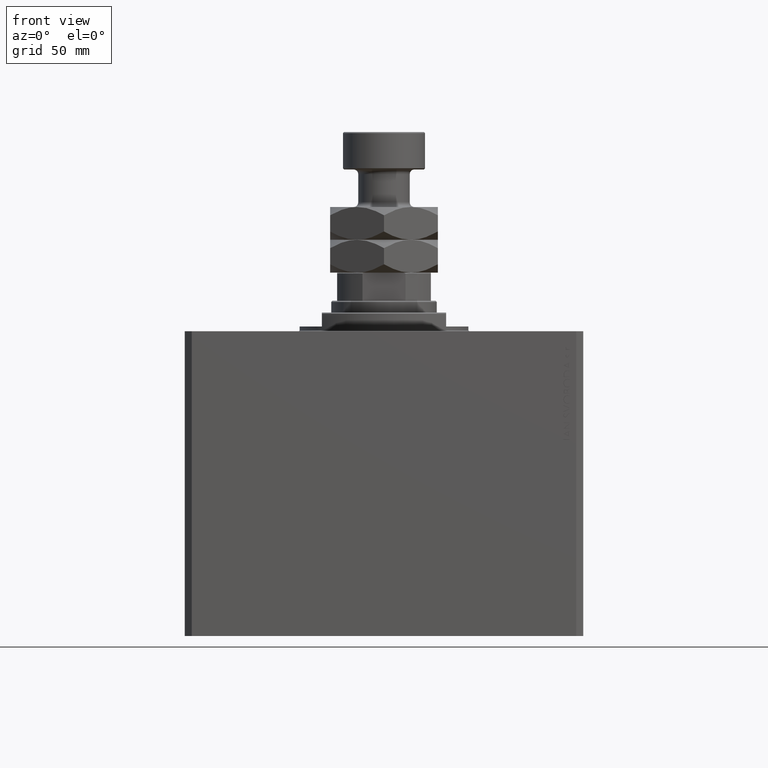
[diagram: clean part render]
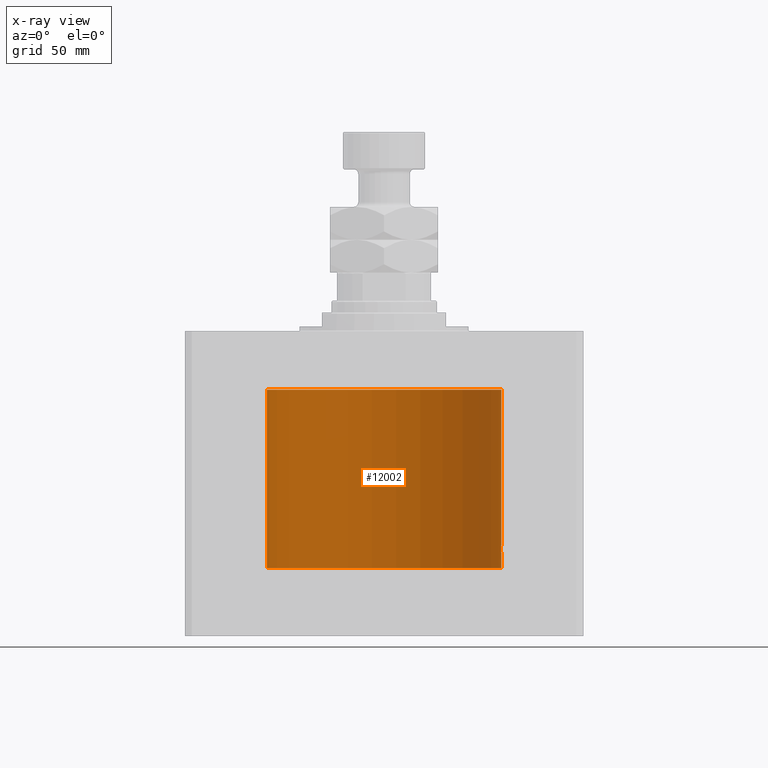
[diagram: x-ray — body ghosted, one internal face saturated and labeled with its STEP entity id]
A machine part, front view, then the same camera in x-ray: the body is ghosted and one INTERNAL B-rep face — a face not visible from any outside direction — is saturated and labeled: STEP entity #12002.
In plain terms, the highlighted cylindrical surface (partial cylindrical patch) has radius 50 mm, axis along (0, 0, 1).
Its self-contained STEP definition (entity closure, byte-faithful):
#119 = CARTESIAN_POINT ( 'NONE',  ( -49.99007938266582585, 1.001891274688316180, -35.26411427938287346 ) ) ;
#2446 = DIRECTION ( 'NONE',  ( 1.000000000000000000, 0.000000000000000000, 0.000000000000000000 ) ) ;
#3112 = ORIENTED_EDGE ( 'NONE', *, *, #20492, .T. ) ;
#3844 = CARTESIAN_POINT ( 'NONE',  ( -49.99598898362840771, 0.6447919409892279852, -35.10225615370830354 ) ) ;
#4339 = B_SPLINE_CURVE_WITH_KNOTS ( 'NONE', 3,
 ( #33304, #11286, #22938, #41480, #3844, #18965, #119, #15251, #45417, #11540, #26651, #37998, #41733, #17994, #48401, #33065, #6818, #30589, #8300, #23413, #38974, #31312, #8542, #16229, #4817, #16477, #34279, #12014, #30827, #26898 ),
 .UNSPECIFIED., .F., .F.,
 ( 4, 2, 2, 2, 2, 2, 2, 2, 2, 2, 2, 2, 2, 2, 4 ),
 ( 1.326213792119351937E-18, 0.0003908460679639691742, 0.0007816921359279370473, 0.001172538203891904975, 0.001563384271855872793, 0.002345076407783809082, 0.003126768543711746021, 0.003517614611675713623, 0.003908460679639682092, 0.004299306747603650128, 0.004690152815567617296, 0.005080998883531585332, 0.005471844951495553368, 0.005862691019459521403, 0.006253537087423489439 ),
 .UNSPECIFIED. ) ;
#4817 = CARTESIAN_POINT ( 'NONE',  ( -49.99228773711749341, 0.8864865707480861223, -38.79759541170199100 ) ) ;
#5551 = ORIENTED_EDGE ( 'NONE', *, *, #29951, .T. ) ;
#5850 = CARTESIAN_POINT ( 'NONE',  ( 49.98263500888551647, 1.320952538904951679, -91.49251590435537196 ) ) ;
#6231 = ORIENTED_EDGE ( 'NONE', *, *, #26085, .T. ) ;
#6571 = CARTESIAN_POINT ( 'NONE',  ( 50.00000000000000711, 0.1321888607815029926, -95.00000000000005684 ) ) ;
#6730 = DIRECTION ( 'NONE',  ( 1.000000000000000000, 0.000000000000000000, 0.000000000000000000 ) ) ;
#6775 = DIRECTION ( 'NONE',  ( 0.000000000000000000, 0.000000000000000000, 1.000000000000000000 ) ) ;
#6818 = CARTESIAN_POINT ( 'NONE',  ( -49.96398106625520086, 1.898185627324846525, -37.64347622409935212 ) ) ;
#6819 = CARTESIAN_POINT ( 'NONE',  ( 49.99748146545036320, 0.5178754880116730464, -94.93618132556299827 ) ) ;
#7159 = EDGE_CURVE ( 'NONE', #27391, #21826, #20528, .T. ) ;
#8300 = CARTESIAN_POINT ( 'NONE',  ( -49.96992887184637055, 1.735355026673580214, -38.00276062309308855 ) ) ;
#8542 = CARTESIAN_POINT ( 'NONE',  ( -49.98523123236354593, 1.219998263164737029, -38.59015112589698759 ) ) ;
#10301 = CARTESIAN_POINT ( 'NONE',  ( 49.96952841668770162, 1.748193601366643479, -94.00584708661953925 ) ) ;
#10317 = CARTESIAN_POINT ( 'NONE',  ( 49.98523696312182096, 1.219762141829697999, -91.40967013674320185 ) ) ;
#10527 = CARTESIAN_POINT ( 'NONE',  ( 50.00000000000000000, 0.000000000000000000, -24.99999999999999289 ) ) ;
#11286 = CARTESIAN_POINT ( 'NONE',  ( -50.00000000000000711, 0.1321588334531834663, -34.99999999999998579 ) ) ;
#11540 = CARTESIAN_POINT ( 'NONE',  ( -49.97476780406313424, 1.598950834465297177, -35.77059039179120958 ) ) ;
#11866 = VERTEX_POINT ( 'NONE', #48374 ) ;
#12002 = ADVANCED_FACE ( 'NONE', ( #17660 ), #47558, .F. ) ;
#12014 = CARTESIAN_POINT ( 'NONE',  ( -49.99947195246410558, 0.2631107820817847887, -38.98691922436691470 ) ) ;
#12793 = ORIENTED_EDGE ( 'NONE', *, *, #27766, .T. ) ;
#12982 = LINE ( 'NONE', #20430, #19538 ) ;
#13305 = CARTESIAN_POINT ( 'NONE',  ( 49.96051123778289593, 1.986950357331387584, -92.73708610268798225 ) ) ;
#13310 = EDGE_LOOP ( 'NONE', ( #20949, #17781, #3112, #6231, #38227, #12793, #32897, #42661, #5551 ) ) ;
#13543 = CARTESIAN_POINT ( 'NONE',  ( 49.99947219664576181, 0.2630509640965523199, -91.01307477770997423 ) ) ;
#13773 = CARTESIAN_POINT ( 'NONE',  ( 50.00000000000000000, 1.506791491575916802E-16, -95.00000000000001421 ) ) ;
#14055 = VERTEX_POINT ( 'NONE', #38104 ) ;
#14267 = CARTESIAN_POINT ( 'NONE',  ( 49.96215500645249818, 1.947567242801464760, -93.52430054767012280 ) ) ;
#14402 = CIRCLE ( 'NONE', #25474, 50.00000000000000000 ) ;
#15251 = CARTESIAN_POINT ( 'NONE',  ( -49.98524905102831184, 1.219303128102697809, -35.40928153240807319 ) ) ;
#15623 = EDGE_CURVE ( 'NONE', #44744, #38151, #27052, .T. ) ;
#16229 = CARTESIAN_POINT ( 'NONE',  ( -49.99004874905787688, 1.003375892571688910, -38.73499659467171341 ) ) ;
#16477 = CARTESIAN_POINT ( 'NONE',  ( -49.99599814809604226, 0.6440968921210817877, -38.89798495722402549 ) ) ;
#17031 = CARTESIAN_POINT ( 'NONE',  ( 49.96251892914508375, 1.935809163618958495, -92.48063661859163176 ) ) ;
#17451 = DIRECTION ( 'NONE',  ( 1.000000000000000000, 0.000000000000000000, 0.000000000000000000 ) ) ;
#17660 = FACE_OUTER_BOUND ( 'NONE', #13310, .T. ) ;
#17761 = CARTESIAN_POINT ( 'NONE',  ( 49.95998398718717226, 2.000000000000564437, -92.86956549692723684 ) ) ;
#17781 = ORIENTED_EDGE ( 'NONE', *, *, #45883, .F. ) ;
#17994 = CARTESIAN_POINT ( 'NONE',  ( -49.95998213453558634, 2.000046279225707213, -37.12975027192857880 ) ) ;
#18556 = DIRECTION ( 'NONE',  ( -0.000000000000000000, -0.000000000000000000, 1.000000000000000000 ) ) ;
#18965 = CARTESIAN_POINT ( 'NONE',  ( -49.99227820941651146, 0.8870121366447424327, -35.20266925059756602 ) ) ;
#19538 = VECTOR ( 'NONE', #35727, 1000.000000000000000 ) ;
#20430 = CARTESIAN_POINT ( 'NONE',  ( -50.00000000000000000, 6.123233995736764507E-15, -101.0999999999999943 ) ) ;
#20492 = EDGE_CURVE ( 'NONE', #25638, #14055, #46861, .T. ) ;
#20528 = LINE ( 'NONE', #31401, #25443 ) ;
#20949 = ORIENTED_EDGE ( 'NONE', *, *, #7159, .F. ) ;
#21005 = CARTESIAN_POINT ( 'NONE',  ( 49.99229103891970283, 0.8862970221311301522, -91.20231340018571586 ) ) ;
#21720 = CARTESIAN_POINT ( 'NONE',  ( 49.99227494580978259, 0.8871990329080466919, -94.79724057694060946 ) ) ;
#21793 = DIRECTION ( 'NONE',  ( 0.000000000000000000, 0.000000000000000000, 1.000000000000000000 ) ) ;
#21826 = VERTEX_POINT ( 'NONE', #29024 ) ;
#22938 = CARTESIAN_POINT ( 'NONE',  ( -49.99947640732126075, 0.2621063239499299979, -35.01297064418641014 ) ) ;
#22939 = CIRCLE ( 'NONE', #45022, 50.00000000000000000 ) ;
#23413 = CARTESIAN_POINT ( 'NONE',  ( -49.97474787754178749, 1.590541763713787082, -38.21949285922860184 ) ) ;
#24700 = CARTESIAN_POINT ( 'NONE',  ( 49.97475596784978791, 1.590287868744626465, -91.78017932967551928 ) ) ;
#25176 = CARTESIAN_POINT ( 'NONE',  ( 49.97475955401471026, 1.599209500590070165, -94.22908514075388098 ) ) ;
#25298 = CARTESIAN_POINT ( 'NONE',  ( 49.95998398718716516, 2.000000000000563549, -93.00000000000001421 ) ) ;
#25340 = DIRECTION ( 'NONE',  ( -0.000000000000000000, -0.000000000000000000, 1.000000000000000000 ) ) ;
#25425 = CARTESIAN_POINT ( 'NONE',  ( 49.95998398718716516, 2.000000000000563549, -93.00000000000001421 ) ) ;
#25443 = VECTOR ( 'NONE', #38814, 1000.000000000000000 ) ;
#25474 = AXIS2_PLACEMENT_3D ( 'NONE', #37329, #21793, #2446 ) ;
#25638 = VERTEX_POINT ( 'NONE', #28517 ) ;
#25919 = CARTESIAN_POINT ( 'NONE',  ( 49.99947616946592177, 0.2621653831979099958, -94.98702351732302418 ) ) ;
#25997 = CARTESIAN_POINT ( 'NONE',  ( 50.00000000000000000, 0.000000000000000000, -101.0999999999999943 ) ) ;
#26085 = EDGE_CURVE ( 'NONE', #14055, #44744, #48151, .T. ) ;
#26651 = CARTESIAN_POINT ( 'NONE',  ( -49.96953708402610062, 1.747948211813102892, -35.99374183287712725 ) ) ;
#26898 = CARTESIAN_POINT ( 'NONE',  ( -50.00000000000000000, 6.123233989258158337E-15, -38.99999999999999289 ) ) ;
#27052 = B_SPLINE_CURVE_WITH_KNOTS ( 'NONE', 3,
 ( #29154, #17761, #13305, #17031, #44226, #28415, #43497, #24700, #39778, #5850, #10317, #40512, #21005, #32344, #47417, #13543, #28650, #40021 ),
 .UNSPECIFIED., .F., .F.,
 ( 4, 2, 2, 2, 2, 2, 2, 2, 4 ),
 ( 0.003127478965430518024, 0.003518236230679781373, 0.003908993495929044722, 0.004299750761178308504, 0.004690508026427571420, 0.005081265291676835202, 0.005472022556926098985, 0.005862779822175361900, 0.006253537087424624816 ),
 .UNSPECIFIED. ) ;
#27391 = VERTEX_POINT ( 'NONE', #39168 ) ;
#27766 = EDGE_CURVE ( 'NONE', #38151, #38645, #45018, .T. ) ;
#28415 = CARTESIAN_POINT ( 'NONE',  ( 49.96769480970100119, 1.797773714148179325, -92.11390000902667907 ) ) ;
#28517 = CARTESIAN_POINT ( 'NONE',  ( 50.00000000000000000, 0.000000000000000000, -101.0999999999999943 ) ) ;
#28650 = CARTESIAN_POINT ( 'NONE',  ( 50.00000000000000000, 0.1305077942112363443, -91.00000000000000000 ) ) ;
#28883 = CARTESIAN_POINT ( 'NONE',  ( 49.99598718814007015, 0.6449352407546058430, -94.89769711772643745 ) ) ;
#29024 = CARTESIAN_POINT ( 'NONE',  ( -50.00000000000000000, 6.123233989258158337E-15, -38.99999999999999289 ) ) ;
#29132 = EDGE_CURVE ( 'NONE', #43019, #11866, #12982, .T. ) ;
#29154 = CARTESIAN_POINT ( 'NONE',  ( 49.95998398718716516, 2.000000000000563549, -93.00000000000001421 ) ) ;
#29854 = CARTESIAN_POINT ( 'NONE',  ( 49.98524326844813004, 1.219541607305973274, -94.59053820226215237 ) ) ;
#29951 = EDGE_CURVE ( 'NONE', #43019, #21826, #4339, .T. ) ;
#30589 = CARTESIAN_POINT ( 'NONE',  ( -49.96768660357033554, 1.798001154690309411, -37.88564223843271606 ) ) ;
#30827 = CARTESIAN_POINT ( 'NONE',  ( -50.00000000000001421, 0.1305374531515847147, -38.99999999999999289 ) ) ;
#31312 = CARTESIAN_POINT ( 'NONE',  ( -49.98262832829516356, 1.321205413082630509, -38.50726475708437135 ) ) ;
#31401 = CARTESIAN_POINT ( 'NONE',  ( -50.00000000000000000, 6.123233995736764507E-15, -101.0999999999999943 ) ) ;
#32282 = CARTESIAN_POINT ( 'NONE',  ( 0.000000000000000000, 0.000000000000000000, -24.99999999999999289 ) ) ;
#32344 = CARTESIAN_POINT ( 'NONE',  ( 49.99599990398859006, 0.6439560014968565005, -91.10196939152021400 ) ) ;
#32728 = CARTESIAN_POINT ( 'NONE',  ( 0.000000000000000000, 0.000000000000000000, -101.0999999999999943 ) ) ;
#32897 = ORIENTED_EDGE ( 'NONE', *, *, #40652, .T. ) ;
#33065 = CARTESIAN_POINT ( 'NONE',  ( -49.96251288907240706, 1.935964606501246799, -37.51879205273049678 ) ) ;
#33304 = CARTESIAN_POINT ( 'NONE',  ( -50.00000000000000000, -7.484292582869336695E-15, -34.99999999999999289 ) ) ;
#33553 = CARTESIAN_POINT ( 'NONE',  ( 49.98259270595343651, 1.322475809934057889, -94.50601728397791135 ) ) ;
#33714 = VECTOR ( 'NONE', #43851, 1000.000000000000000 ) ;
#34279 = CARTESIAN_POINT ( 'NONE',  ( -49.99746633848589283, 0.5194059499681273895, -38.93579253716512767 ) ) ;
#35727 = DIRECTION ( 'NONE',  ( -0.000000000000000000, -0.000000000000000000, 1.000000000000000000 ) ) ;
#36821 = VECTOR ( 'NONE', #18556, 1000.000000000000000 ) ;
#37329 = CARTESIAN_POINT ( 'NONE',  ( 0.000000000000000000, 0.000000000000000000, -101.0999999999999943 ) ) ;
#37998 = CARTESIAN_POINT ( 'NONE',  ( -49.96216141728076821, 1.947404903100933504, -36.47512611661414184 ) ) ;
#38104 = CARTESIAN_POINT ( 'NONE',  ( 50.00000000000000000, 1.506791491575916802E-16, -95.00000000000001421 ) ) ;
#38151 = VERTEX_POINT ( 'NONE', #39799 ) ;
#38227 = ORIENTED_EDGE ( 'NONE', *, *, #15623, .T. ) ;
#38458 = CARTESIAN_POINT ( 'NONE',  ( -50.00000000000000000, -7.484292582869336695E-15, -34.99999999999999289 ) ) ;
#38645 = VERTEX_POINT ( 'NONE', #10527 ) ;
#38814 = DIRECTION ( 'NONE',  ( -0.000000000000000000, -0.000000000000000000, 1.000000000000000000 ) ) ;
#38974 = CARTESIAN_POINT ( 'NONE',  ( -49.97734518528593384, 1.507874855161124295, -38.32050907330479106 ) ) ;
#39168 = CARTESIAN_POINT ( 'NONE',  ( -50.00000000000000000, 6.123233995736764507E-15, -101.0999999999999943 ) ) ;
#39778 = CARTESIAN_POINT ( 'NONE',  ( 49.97735290927441554, 1.507618726120014241, -91.67920111852205878 ) ) ;
#39799 = CARTESIAN_POINT ( 'NONE',  ( 50.00000000000000000, -6.476745247090812175E-24, -91.00000000000001421 ) ) ;
#40021 = CARTESIAN_POINT ( 'NONE',  ( 50.00000000000000000, -6.476745247090812175E-24, -91.00000000000001421 ) ) ;
#40512 = CARTESIAN_POINT ( 'NONE',  ( 49.99005286890575661, 1.003169031662883182, -91.26488598342368164 ) ) ;
#40652 = EDGE_CURVE ( 'NONE', #38645, #11866, #22939, .T. ) ;
#40740 = CARTESIAN_POINT ( 'NONE',  ( 49.99007528730422933, 1.002097354324908984, -94.73576910828040809 ) ) ;
#41480 = CARTESIAN_POINT ( 'NONE',  ( -49.99748258676788026, 0.5177602892975216031, -35.06378986968200451 ) ) ;
#41733 = CARTESIAN_POINT ( 'NONE',  ( -49.95998770768563446, 1.999907061972440614, -36.73836523183381786 ) ) ;
#42661 = ORIENTED_EDGE ( 'NONE', *, *, #29132, .F. ) ;
#43019 = VERTEX_POINT ( 'NONE', #38458 ) ;
#43497 = CARTESIAN_POINT ( 'NONE',  ( 49.96993720661966876, 1.735115303979041013, -91.99682860132226381 ) ) ;
#43851 = DIRECTION ( 'NONE',  ( -0.000000000000000000, -0.000000000000000000, 1.000000000000000000 ) ) ;
#44226 = CARTESIAN_POINT ( 'NONE',  ( 49.96398801900033959, 1.898003203340656198, -92.35599117910246036 ) ) ;
#44584 = CARTESIAN_POINT ( 'NONE',  ( 50.00000000000000000, 0.000000000000000000, -101.0999999999999943 ) ) ;
#44744 = VERTEX_POINT ( 'NONE', #25298 ) ;
#45018 = LINE ( 'NONE', #25997, #36821 ) ;
#45022 = AXIS2_PLACEMENT_3D ( 'NONE', #32282, #6775, #17451 ) ;
#45417 = CARTESIAN_POINT ( 'NONE',  ( -49.98259925701036366, 1.322227939264703833, -35.49376754264949341 ) ) ;
#45883 = EDGE_CURVE ( 'NONE', #25638, #27391, #14402, .T. ) ;
#46861 = LINE ( 'NONE', #44584, #33714 ) ;
#47417 = CARTESIAN_POINT ( 'NONE',  ( 49.99746746122490748, 0.5192910711913447663, -91.06417861566059457 ) ) ;
#47558 = CYLINDRICAL_SURFACE ( 'NONE', #48759, 50.00000000000000000 ) ;
#48151 = B_SPLINE_CURVE_WITH_KNOTS ( 'NONE', 3,
 ( #13773, #6571, #25919, #6819, #28883, #21720, #40740, #29854, #33553, #25176, #10301, #14267, #48165, #25425 ),
 .UNSPECIFIED., .F., .F.,
 ( 4, 2, 2, 2, 2, 2, 4 ),
 ( 1.464298950247375998E-19, 0.0003909348706788147530, 0.0007818697413576292891, 0.001172804612036444042, 0.001563739482715258578, 0.002345609224072888084, 0.003127478965430518024 ),
 .UNSPECIFIED. ) ;
#48165 = CARTESIAN_POINT ( 'NONE',  ( 49.95998398718717226, 2.000000000000561773, -93.26098757528311012 ) ) ;
#48374 = CARTESIAN_POINT ( 'NONE',  ( -50.00000000000000000, 6.123233995736764507E-15, -24.99999999999999289 ) ) ;
#48401 = CARTESIAN_POINT ( 'NONE',  ( -49.96050770337905789, 1.987038794023258559, -37.26226128698008466 ) ) ;
#48759 = AXIS2_PLACEMENT_3D ( 'NONE', #32728, #25340, #6730 ) ;